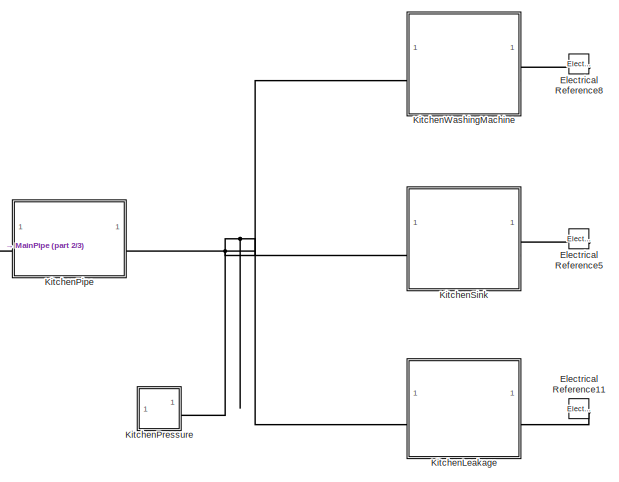
[diagram: root canvas - part 1/3, top right region]
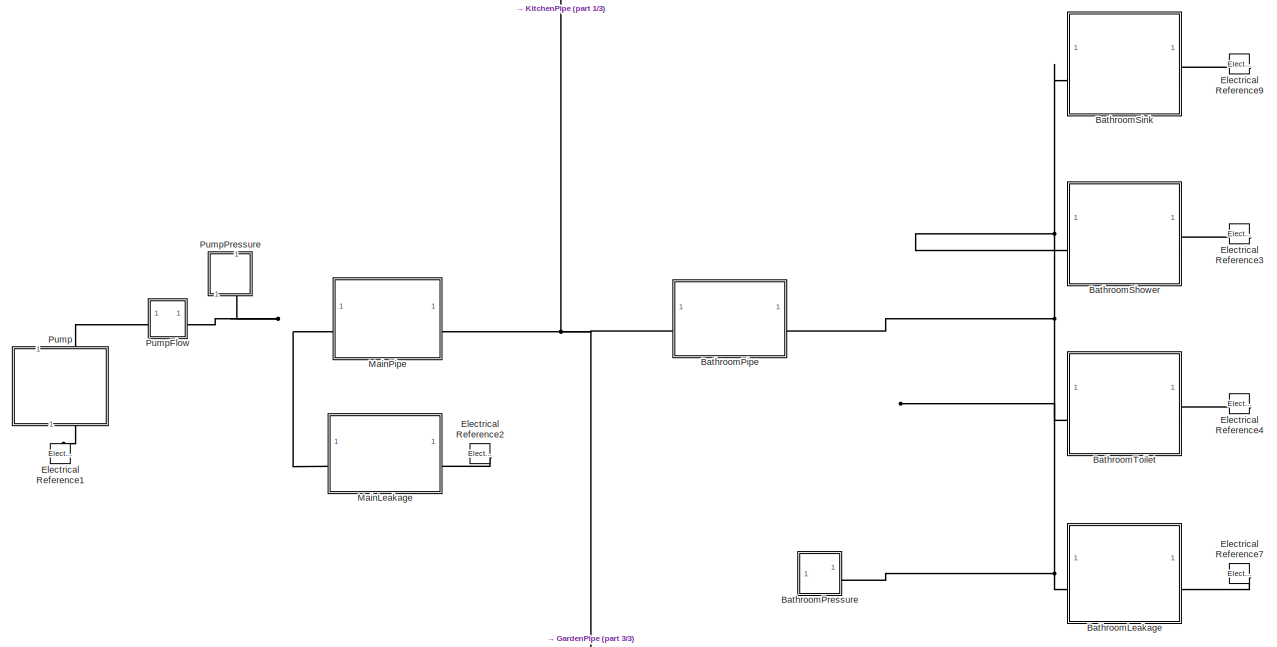
[diagram: root canvas - part 2/3, full width, middle band]
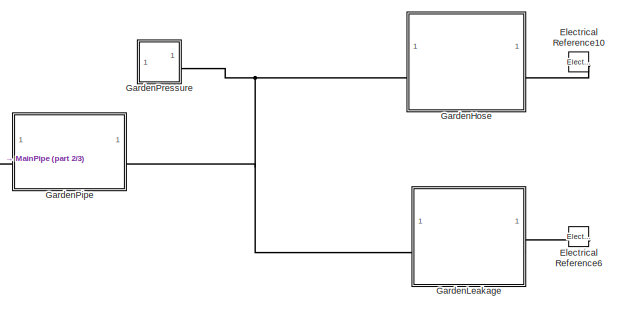
[diagram: root canvas - part 3/3, bottom right region]
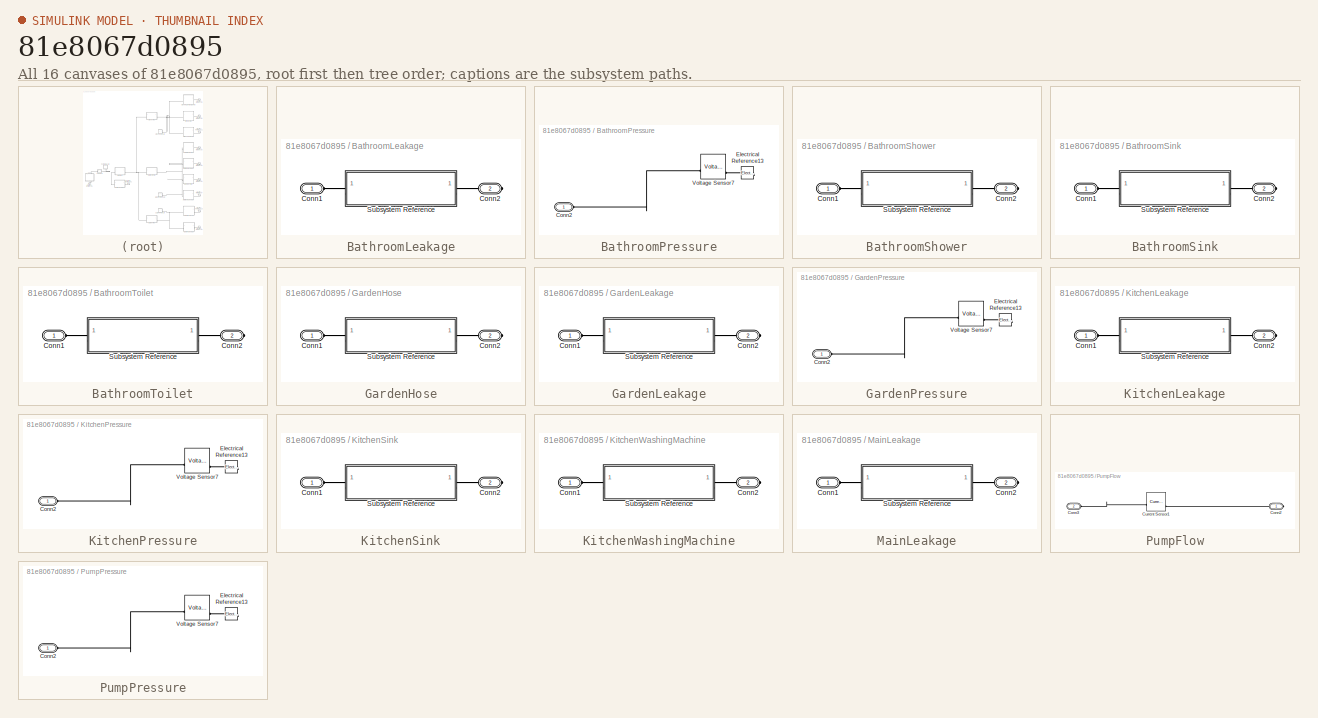
[diagram: thumbnail index - all 16 canvases of the model, root first then tree order]
MODEL slx_81e8067d0895
KIND model
CONFIG AbsTol = 1e-3
CONFIG EnableMultiTasking = off
CONFIG FixedStep = auto
CONFIG MaxStep = auto
CONFIG MinStep = auto
CONFIG RelTol = 1e-3
CONFIG SampleTimeConstraint = Unconstrained
CONFIG SolverName = VariableStepAuto
CONFIG StartTime = 0.0
CONFIG StopTime = 10
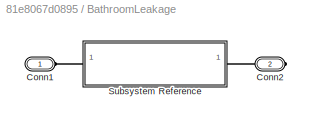
BLOCK [SubSystem] BathroomLeakage
BLOCK [PMIOPort] BathroomLeakage/Conn1
  Side = Left
BLOCK [PMIOPort] BathroomLeakage/Conn2
  Port = 2
  Side = Right
BLOCK [SubSystem] BathroomLeakage/Subsystem Reference
  R = R
  ReferencedSubsystem = ApplianceModel
BLOCK [SubSystem] BathroomPipe
  C = 1
  L = 1
  R = 1
  ReferencedSubsystem = PipeModel
  icon = on
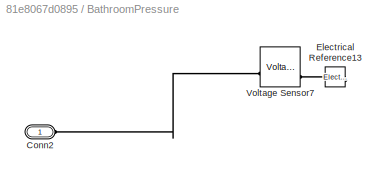
BLOCK [SubSystem] BathroomPressure
  NameLocation = top
BLOCK [PMIOPort] BathroomPressure/Conn2
  Side = Left
BLOCK [Reference] BathroomPressure/Electrical Reference13  REF=fl_lib/Electrical/Electrical Elements/Electrical Reference
  NameLocation = right
  SourceBlock = fl_lib/Electrical/Electrical Elements/Electrical Reference
  SourceType = Electrical Reference
BLOCK [Reference] BathroomPressure/Voltage Sensor7  REF=fl_lib/Electrical/Electrical Sensors/Voltage Sensor
  SourceBlock = fl_lib/Electrical/Electrical Sensors/Voltage Sensor
  SourceType = Voltage Sensor
BLOCK [SubSystem] BathroomShower
BLOCK [PMIOPort] BathroomShower/Conn1
  Side = Left
BLOCK [PMIOPort] BathroomShower/Conn2
  Port = 2
  Side = Right
BLOCK [SubSystem] BathroomShower/Subsystem Reference
  R = R
  ReferencedSubsystem = ApplianceModel
BLOCK [SubSystem] BathroomSink
BLOCK [PMIOPort] BathroomSink/Conn1
  Side = Left
BLOCK [PMIOPort] BathroomSink/Conn2
  Port = 2
  Side = Right
BLOCK [SubSystem] BathroomSink/Subsystem Reference
  R = R
  ReferencedSubsystem = ApplianceModel
BLOCK [SubSystem] BathroomToilet
BLOCK [PMIOPort] BathroomToilet/Conn1
  Side = Left
BLOCK [PMIOPort] BathroomToilet/Conn2
  Port = 2
  Side = Right
BLOCK [SubSystem] BathroomToilet/Subsystem Reference
  R = R
  ReferencedSubsystem = ApplianceModel
BLOCK [Reference] Electrical Reference1  REF=fl_lib/Electrical/Electrical Elements/Electrical Reference
  SourceBlock = fl_lib/Electrical/Electrical Elements/Electrical Reference
  SourceType = Electrical Reference
BLOCK [Reference] Electrical Reference10  REF=fl_lib/Electrical/Electrical Elements/Electrical Reference
  NameLocation = right
  SourceBlock = fl_lib/Electrical/Electrical Elements/Electrical Reference
  SourceType = Electrical Reference
BLOCK [Reference] Electrical Reference11  REF=fl_lib/Electrical/Electrical Elements/Electrical Reference
  NameLocation = right
  SourceBlock = fl_lib/Electrical/Electrical Elements/Electrical Reference
  SourceType = Electrical Reference
BLOCK [Reference] Electrical Reference2  REF=fl_lib/Electrical/Electrical Elements/Electrical Reference
  NameLocation = right
  SourceBlock = fl_lib/Electrical/Electrical Elements/Electrical Reference
  SourceType = Electrical Reference
BLOCK [Reference] Electrical Reference3  REF=fl_lib/Electrical/Electrical Elements/Electrical Reference
  NameLocation = right
  SourceBlock = fl_lib/Electrical/Electrical Elements/Electrical Reference
  SourceType = Electrical Reference
BLOCK [Reference] Electrical Reference4  REF=fl_lib/Electrical/Electrical Elements/Electrical Reference
  NameLocation = right
  SourceBlock = fl_lib/Electrical/Electrical Elements/Electrical Reference
  SourceType = Electrical Reference
BLOCK [Reference] Electrical Reference5  REF=fl_lib/Electrical/Electrical Elements/Electrical Reference
  NameLocation = right
  SourceBlock = fl_lib/Electrical/Electrical Elements/Electrical Reference
  SourceType = Electrical Reference
BLOCK [Reference] Electrical Reference6  REF=fl_lib/Electrical/Electrical Elements/Electrical Reference
  NameLocation = right
  SourceBlock = fl_lib/Electrical/Electrical Elements/Electrical Reference
  SourceType = Electrical Reference
BLOCK [Reference] Electrical Reference7  REF=fl_lib/Electrical/Electrical Elements/Electrical Reference
  NameLocation = right
  SourceBlock = fl_lib/Electrical/Electrical Elements/Electrical Reference
  SourceType = Electrical Reference
BLOCK [Reference] Electrical Reference8  REF=fl_lib/Electrical/Electrical Elements/Electrical Reference
  NameLocation = right
  SourceBlock = fl_lib/Electrical/Electrical Elements/Electrical Reference
  SourceType = Electrical Reference
BLOCK [Reference] Electrical Reference9  REF=fl_lib/Electrical/Electrical Elements/Electrical Reference
  NameLocation = right
  SourceBlock = fl_lib/Electrical/Electrical Elements/Electrical Reference
  SourceType = Electrical Reference
BLOCK [SubSystem] GardenHose
BLOCK [PMIOPort] GardenHose/Conn1
  Side = Left
BLOCK [PMIOPort] GardenHose/Conn2
  Port = 2
  Side = Right
BLOCK [SubSystem] GardenHose/Subsystem Reference
  R = R
  ReferencedSubsystem = ApplianceModel
BLOCK [SubSystem] GardenLeakage
BLOCK [PMIOPort] GardenLeakage/Conn1
  Side = Left
BLOCK [PMIOPort] GardenLeakage/Conn2
  Port = 2
  Side = Right
BLOCK [SubSystem] GardenLeakage/Subsystem Reference
  R = R
  ReferencedSubsystem = ApplianceModel
BLOCK [SubSystem] GardenPipe
  C = 1
  L = 1
  R = 1
  ReferencedSubsystem = PipeModel
  icon = on
BLOCK [SubSystem] GardenPressure
  NameLocation = top
BLOCK [PMIOPort] GardenPressure/Conn2
  Side = Left
BLOCK [Reference] GardenPressure/Electrical Reference13  REF=fl_lib/Electrical/Electrical Elements/Electrical Reference
  NameLocation = right
  SourceBlock = fl_lib/Electrical/Electrical Elements/Electrical Reference
  SourceType = Electrical Reference
BLOCK [Reference] GardenPressure/Voltage Sensor7  REF=fl_lib/Electrical/Electrical Sensors/Voltage Sensor
  SourceBlock = fl_lib/Electrical/Electrical Sensors/Voltage Sensor
  SourceType = Voltage Sensor
BLOCK [SubSystem] KitchenLeakage
BLOCK [PMIOPort] KitchenLeakage/Conn1
  Side = Left
BLOCK [PMIOPort] KitchenLeakage/Conn2
  Port = 2
  Side = Right
BLOCK [SubSystem] KitchenLeakage/Subsystem Reference
  R = R
  ReferencedSubsystem = ApplianceModel
BLOCK [SubSystem] KitchenPipe
  C = 1
  L = 1
  R = 1
  ReferencedSubsystem = PipeModel
  icon = on
BLOCK [SubSystem] KitchenPressure
  NameLocation = top
BLOCK [PMIOPort] KitchenPressure/Conn2
  Side = Left
BLOCK [Reference] KitchenPressure/Electrical Reference13  REF=fl_lib/Electrical/Electrical Elements/Electrical Reference
  NameLocation = right
  SourceBlock = fl_lib/Electrical/Electrical Elements/Electrical Reference
  SourceType = Electrical Reference
BLOCK [Reference] KitchenPressure/Voltage Sensor7  REF=fl_lib/Electrical/Electrical Sensors/Voltage Sensor
  SourceBlock = fl_lib/Electrical/Electrical Sensors/Voltage Sensor
  SourceType = Voltage Sensor
BLOCK [SubSystem] KitchenSink
BLOCK [PMIOPort] KitchenSink/Conn1
  Side = Left
BLOCK [PMIOPort] KitchenSink/Conn2
  Port = 2
  Side = Right
BLOCK [SubSystem] KitchenSink/Subsystem Reference
  R = R
  ReferencedSubsystem = ApplianceModel
BLOCK [SubSystem] KitchenWashingMachine
BLOCK [PMIOPort] KitchenWashingMachine/Conn1
  Side = Left
BLOCK [PMIOPort] KitchenWashingMachine/Conn2
  Port = 2
  Side = Right
BLOCK [SubSystem] KitchenWashingMachine/Subsystem Reference
  R = R
  ReferencedSubsystem = ApplianceModel
BLOCK [SubSystem] MainLeakage
BLOCK [PMIOPort] MainLeakage/Conn1
  Side = Left
BLOCK [PMIOPort] MainLeakage/Conn2
  Port = 2
  Side = Right
BLOCK [SubSystem] MainLeakage/Subsystem Reference
  R = R
  ReferencedSubsystem = ApplianceModel
BLOCK [SubSystem] MainPipe
  C = 1
  L = 1
  R = 1
  ReferencedSubsystem = PipeModel
  icon = on
BLOCK [SubSystem] Pump
  NameLocation = right
  ReferencedSubsystem = PumpModel
  V = 1
  icon = on
BLOCK [SubSystem] PumpFlow
BLOCK [PMIOPort] PumpFlow/Conn2
  Side = Right
BLOCK [PMIOPort] PumpFlow/Conn3
  Port = 2
  Side = Left
BLOCK [Reference] PumpFlow/Current Sensor1  REF=fl_lib/Electrical/Electrical Sensors/Current Sensor
  SourceBlock = fl_lib/Electrical/Electrical Sensors/Current Sensor
  SourceType = Current Sensor
BLOCK [SubSystem] PumpPressure
  NameLocation = right
BLOCK [PMIOPort] PumpPressure/Conn2
  Side = Left
BLOCK [Reference] PumpPressure/Electrical Reference13  REF=fl_lib/Electrical/Electrical Elements/Electrical Reference
  NameLocation = right
  SourceBlock = fl_lib/Electrical/Electrical Elements/Electrical Reference
  SourceType = Electrical Reference
BLOCK [Reference] PumpPressure/Voltage Sensor7  REF=fl_lib/Electrical/Electrical Sensors/Voltage Sensor
  SourceBlock = fl_lib/Electrical/Electrical Sensors/Voltage Sensor
  SourceType = Voltage Sensor
PLINE BathroomLeakage/Conn1:RConn1 -- BathroomLeakage/Subsystem Reference:LConn1
PLINE BathroomLeakage/Conn2:RConn1 -- BathroomLeakage/Subsystem Reference:RConn1
PNET net1: BathroomLeakage:LConn1 -- BathroomPipe:RConn1 -- BathroomPressure:LConn1 -- BathroomShower:LConn1 -- BathroomSink:LConn1 -- BathroomToilet:LConn1
PLINE BathroomLeakage:RConn1 -- Electrical Reference7:LConn1
PNET net2: BathroomPipe:LConn1 -- GardenPipe:LConn1 -- KitchenPipe:LConn1 -- MainPipe:RConn1
PLINE BathroomPressure/Conn2:RConn1 -- BathroomPressure/Voltage Sensor7:LConn1
PLINE BathroomPressure/Electrical Reference13:LConn1 -- BathroomPressure/Voltage Sensor7:RConn2
PLINE BathroomShower/Conn1:RConn1 -- BathroomShower/Subsystem Reference:LConn1
PLINE BathroomShower/Conn2:RConn1 -- BathroomShower/Subsystem Reference:RConn1
PLINE BathroomShower:RConn1 -- Electrical Reference3:LConn1
PLINE BathroomSink/Conn1:RConn1 -- BathroomSink/Subsystem Reference:LConn1
PLINE BathroomSink/Conn2:RConn1 -- BathroomSink/Subsystem Reference:RConn1
PLINE BathroomSink:RConn1 -- Electrical Reference9:LConn1
PLINE BathroomToilet/Conn1:RConn1 -- BathroomToilet/Subsystem Reference:LConn1
PLINE BathroomToilet/Conn2:RConn1 -- BathroomToilet/Subsystem Reference:RConn1
PLINE BathroomToilet:RConn1 -- Electrical Reference4:LConn1
PLINE Electrical Reference10:LConn1 -- GardenHose:RConn1
PLINE Electrical Reference11:LConn1 -- KitchenLeakage:RConn1
PLINE Electrical Reference1:LConn1 -- Pump:RConn1
PLINE Electrical Reference2:LConn1 -- MainLeakage:RConn1
PLINE Electrical Reference5:LConn1 -- KitchenSink:RConn1
PLINE Electrical Reference6:LConn1 -- GardenLeakage:RConn1
PLINE Electrical Reference8:LConn1 -- KitchenWashingMachine:RConn1
PLINE GardenHose/Conn1:RConn1 -- GardenHose/Subsystem Reference:LConn1
PLINE GardenHose/Conn2:RConn1 -- GardenHose/Subsystem Reference:RConn1
PNET net3: GardenHose:LConn1 -- GardenLeakage:LConn1 -- GardenPipe:RConn1 -- GardenPressure:LConn1
PLINE GardenLeakage/Conn1:RConn1 -- GardenLeakage/Subsystem Reference:LConn1
PLINE GardenLeakage/Conn2:RConn1 -- GardenLeakage/Subsystem Reference:RConn1
PLINE GardenPressure/Conn2:RConn1 -- GardenPressure/Voltage Sensor7:LConn1
PLINE GardenPressure/Electrical Reference13:LConn1 -- GardenPressure/Voltage Sensor7:RConn2
PLINE KitchenLeakage/Conn1:RConn1 -- KitchenLeakage/Subsystem Reference:LConn1
PLINE KitchenLeakage/Conn2:RConn1 -- KitchenLeakage/Subsystem Reference:RConn1
PNET net4: KitchenLeakage:LConn1 -- KitchenPipe:RConn1 -- KitchenPressure:LConn1 -- KitchenSink:LConn1 -- KitchenWashingMachine:LConn1
PLINE KitchenPressure/Conn2:RConn1 -- KitchenPressure/Voltage Sensor7:LConn1
PLINE KitchenPressure/Electrical Reference13:LConn1 -- KitchenPressure/Voltage Sensor7:RConn2
PLINE KitchenSink/Conn1:RConn1 -- KitchenSink/Subsystem Reference:LConn1
PLINE KitchenSink/Conn2:RConn1 -- KitchenSink/Subsystem Reference:RConn1
PLINE KitchenWashingMachine/Conn1:RConn1 -- KitchenWashingMachine/Subsystem Reference:LConn1
PLINE KitchenWashingMachine/Conn2:RConn1 -- KitchenWashingMachine/Subsystem Reference:RConn1
PLINE MainLeakage/Conn1:RConn1 -- MainLeakage/Subsystem Reference:LConn1
PLINE MainLeakage/Conn2:RConn1 -- MainLeakage/Subsystem Reference:RConn1
PNET net5: MainLeakage:LConn1 -- MainPipe:LConn1 -- PumpFlow:RConn1 -- PumpPressure:LConn1
PLINE Pump:LConn1 -- PumpFlow:LConn1
PLINE PumpFlow/Conn2:RConn1 -- PumpFlow/Current Sensor1:RConn2
PLINE PumpFlow/Conn3:RConn1 -- PumpFlow/Current Sensor1:LConn1
PLINE PumpPressure/Conn2:RConn1 -- PumpPressure/Voltage Sensor7:LConn1
PLINE PumpPressure/Electrical Reference13:LConn1 -- PumpPressure/Voltage Sensor7:RConn2
note: PNET lines group multi-terminal physical nets as a canonical sorted terminal list (undirected conserving connections); 2-terminal nets keep the pairwise PLINE form
